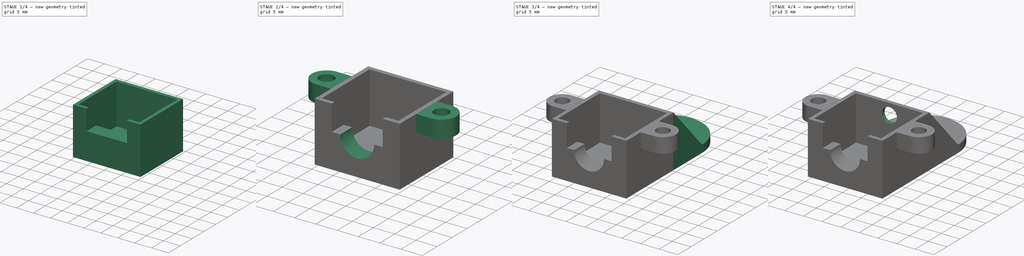
[diagram: build sequence overview — one tinted view per stage of 4, left to right]
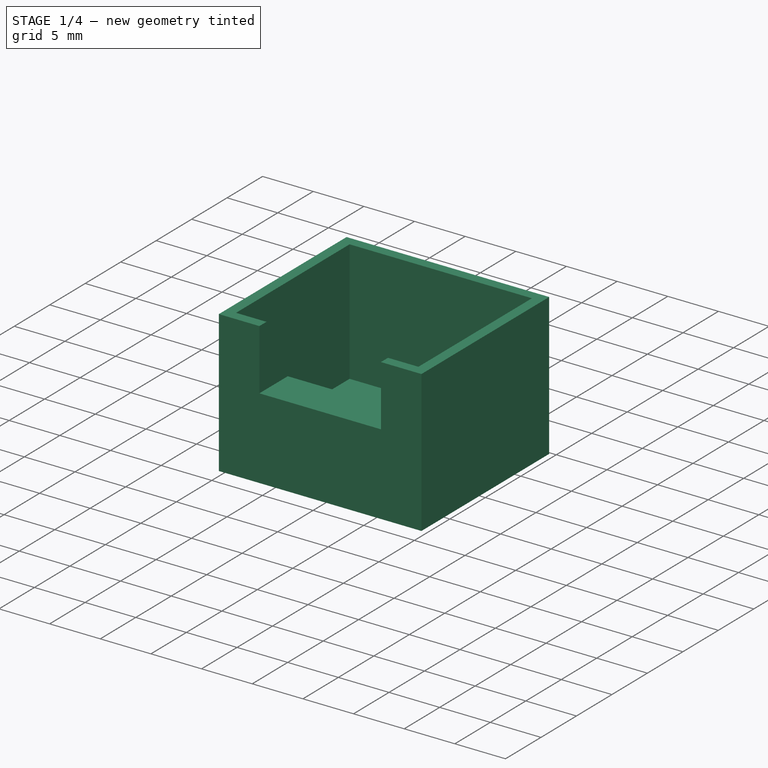
[diagram: stage 1 of 4 — iso view after this stage's code; geometry added in this stage tinted green]
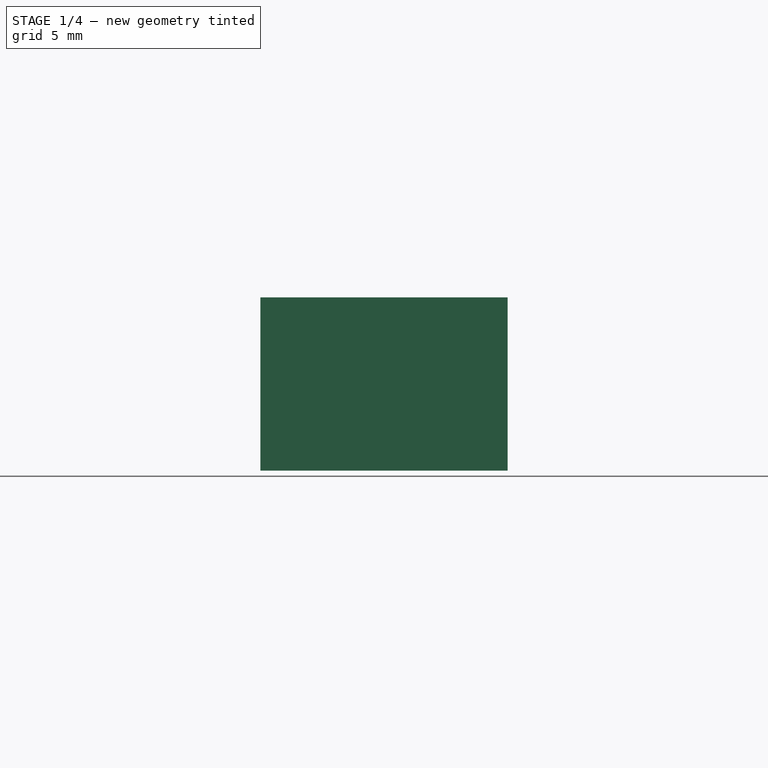
[diagram: stage 1 of 4 — front view after this stage's code; geometry added in this stage tinted green]
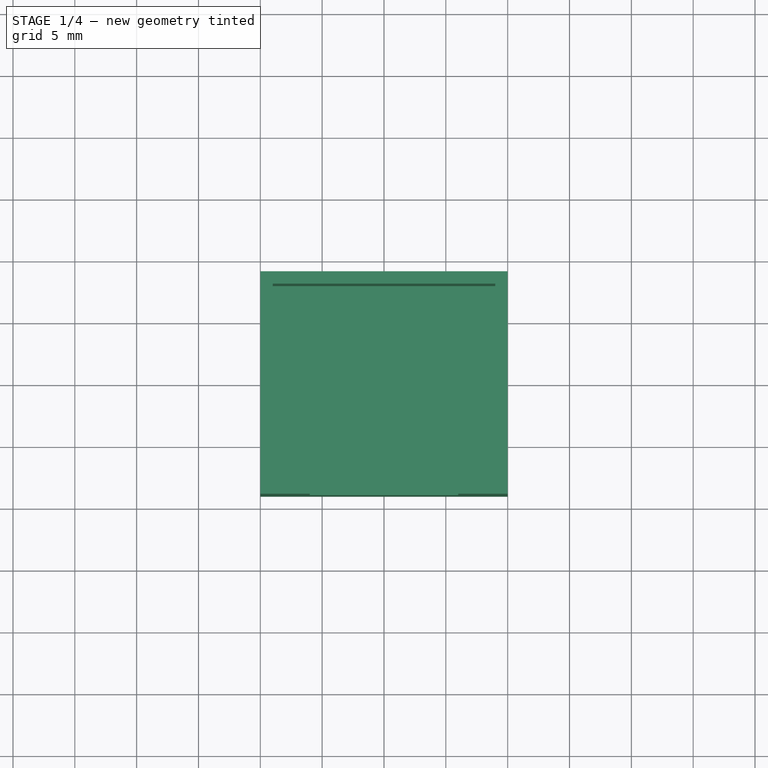
[diagram: stage 1 of 4 — top view after this stage's code; geometry added in this stage tinted green]
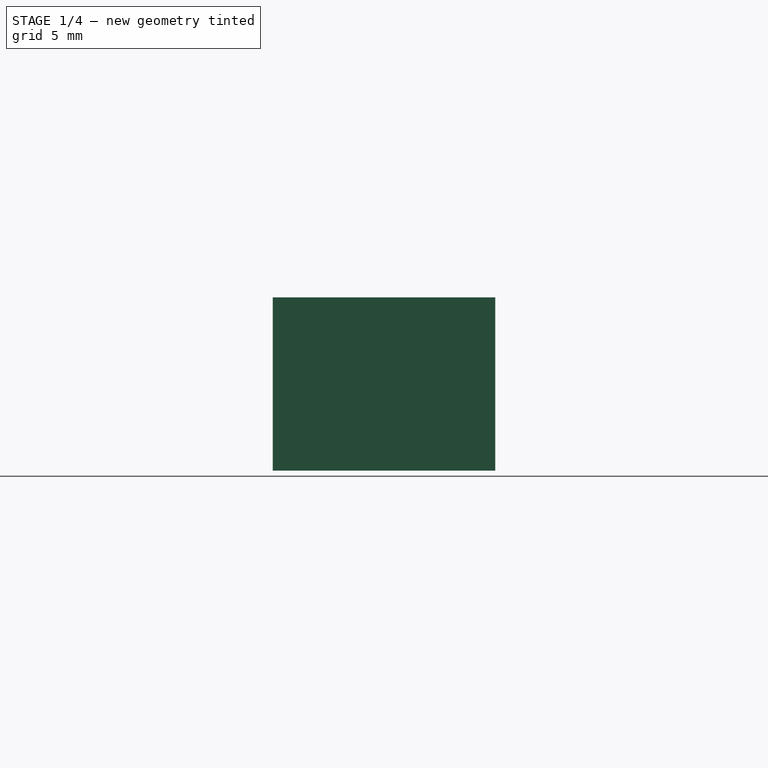
[diagram: stage 1 of 4 — right view after this stage's code; geometry added in this stage tinted green]
FCSTD DOCUMENT  (FreeCAD 1.0R38641 +678 (Git))
Label: box-part3
License: All rights reserved
LicenseURL: https://en.wikipedia.org/wiki/All_rights_reserved
objects: Sketcher::SketchObject×11, PartDesign::Pad×6, PartDesign::Pocket×4, PartDesign::Hole×1, PartDesign::Body×1
note: 56 computed .brp shape members not serialized (recipe doc carries the construction recipe); baked Part::Feature solids carry a one-line shape summary decoded from their .brp

FEATURE [Sketcher::SketchObject] Sketch302
  ArcFitTolerance = 0
  FullyConstrained = true
  MakeInternals = false
  MapMode = 5
  Placement = pos=(0,0,40) rot=(0,0,1;0rad)
  sketch-geometry (4):
    g0: LineSegment StartX=-10 StartY=9 StartZ=0 EndX=10 EndY=9 EndZ=0
    g1: LineSegment StartX=10 StartY=9 StartZ=0 EndX=10 EndY=-9 EndZ=0
    g2: LineSegment StartX=10 StartY=-9 StartZ=0 EndX=-10 EndY=-9 EndZ=0
    g3: LineSegment StartX=-10 StartY=-9 StartZ=0 EndX=-10 EndY=9 EndZ=0
  constraints (12):
    c: Coincident(g0,g1)
    c: Coincident(g1,g2)
    c: Coincident(g2,g3)
    c: Coincident(g3,g0)
    c: Horizontal(g0)
    c: Horizontal(g2)
    c: Vertical(g1)
    c: Vertical(g3)
    c: DistanceX(g2,g2) = 20
    c: DistanceY(g1,g1) = 18
    c: Distance(g-1,g3) = 10
    c: Distance(g-1,g0) = 9
FEATURE [PartDesign::Pad] Pad142
  Direction = (0,0,1)
  Length = 2
  Length2 = 10
  Placement = pos=(0,0,40) rot=(0,0,1;0rad)
  Profile = -> Sketch302
  ReferenceAxis = -> Sketch302 [N_Axis]
  Suppressed = false
  Type = 0
FEATURE [Sketcher::SketchObject] Sketch305
  ArcFitTolerance = 0
  FullyConstrained = true
  MakeInternals = false
  MapMode = 5
  Placement = pos=(0,0,42) rot=(0,0,1;0rad)
  sketch-geometry (4):
    g0: LineSegment StartX=-6 StartY=-5 StartZ=0 EndX=6 EndY=-5 EndZ=0
    g1: LineSegment StartX=6 StartY=-5 StartZ=0 EndX=6 EndY=-9 EndZ=0
    g2: LineSegment StartX=6 StartY=-9 StartZ=0 EndX=-6 EndY=-9 EndZ=0
    g3: LineSegment StartX=-6 StartY=-9 StartZ=0 EndX=-6 EndY=-5 EndZ=0
  constraints (12):
    c: Coincident(g0,g1)
    c: Coincident(g1,g2)
    c: Coincident(g2,g3)
    c: Coincident(g3,g0)
    c: Horizontal(g0)
    c: Horizontal(g2)
    c: Vertical(g1)
    c: Vertical(g3)
    c: DistanceX(g2,g2) = 12
    c: Distance(g-1,g3) = 6
    c: DistanceY(g1,g1) = 4
    c: Distance(g-1,g0) = 5
FEATURE [PartDesign::Pad] Pad143
  BaseFeature = -> Pad142
  Direction = (0,0,1)
  Length = 6
  Length2 = 10
  Placement = pos=(0,0,40) rot=(0,0,1;0rad)
  Profile = -> Sketch305
  ReferenceAxis = -> Sketch305 [N_Axis]
  Suppressed = false
  Type = 0
FEATURE [Sketcher::SketchObject] Sketch306
  ArcFitTolerance = 0
  AttachmentSupport = -> [Pad143]
  FullyConstrained = true
  MakeInternals = false
  MapMode = 5
  Placement = pos=(0,0,42) rot=(0,0,1;0rad)
  sketch-geometry (12):
    g0: LineSegment StartX=-9 StartY=-8 StartZ=0 EndX=-6 EndY=-8 EndZ=0
    g1: LineSegment StartX=-9 StartY=8 StartZ=0 EndX=-9 EndY=-8 EndZ=0
    g2: LineSegment StartX=9 StartY=-8 StartZ=0 EndX=9 EndY=8 EndZ=0
    g3: LineSegment StartX=-9 StartY=8 StartZ=0 EndX=9 EndY=8 EndZ=0
    g4: LineSegment StartX=-10 StartY=9 StartZ=0 EndX=-10 EndY=-9 EndZ=0
    g5: LineSegment StartX=-10 StartY=-9 StartZ=0 EndX=-6 EndY=-9 EndZ=0
    g6: LineSegment StartX=10 StartY=-9 StartZ=0 EndX=10 EndY=9 EndZ=0
    g7: LineSegment StartX=10 StartY=9 StartZ=0 EndX=-10 EndY=9 EndZ=0
    g8: LineSegment StartX=-6 StartY=-8 StartZ=0 EndX=-6 EndY=-9 EndZ=0
    g9: LineSegment StartX=6 StartY=-8 StartZ=0 EndX=6 EndY=-9 EndZ=0
    g10: LineSegment StartX=6 StartY=-8 StartZ=0 EndX=9 EndY=-8 EndZ=0
    g11: LineSegment StartX=6 StartY=-9 StartZ=0 EndX=10 EndY=-9 EndZ=0
  constraints (36):
    c: Horizontal(g0)
    c: Coincident(g1,g0)
    c: Vertical(g1)
    c: Coincident(g2,g10)
    c: Vertical(g2)
    c: Coincident(g3,g1)
    c: Coincident(g3,g2)
    c: Horizontal(g3)
    c: Vertical(g4)
    c: Coincident(g5,g4)
    c: Horizontal(g5)
    c: Coincident(g6,g11)
    c: Vertical(g6)
    c: Coincident(g7,g6)
    c: Coincident(g7,g4)
    c: Horizontal(g7)
    c: DistanceY(g6,g6) = 18
    c: DistanceY(g2,g2) = 16
    c: DistanceX(g5,g11) = 20
    c: DistanceX(g0,g10) = 18
    c: Distance(g-1,g0) = 8
    c: Distance(g-1,g5) = 9
    c: Distance(g-1,g1) = 9
    c: Distance(g-1,g4) = 10
    c: Vertical(g8)
    c: Vertical(g9)
    c: Coincident(g0,g8)
    c: Coincident(g10,g9)
    c: Coincident(g5,g8)
    c: Coincident(g11,g9)
    c: Horizontal(g10)
    c: Horizontal(g11)
    c: DistanceY(g9,g9) = 1
    c: Distance(g-1,g8) = 6
    c: Distance(g-1,g9) = 6
    c: Distance(g-1,g10) = 8
FEATURE [PartDesign::Pad] Pad144
  BaseFeature = -> Pad143
  Direction = (0,0,1)
  Length = 12
  Length2 = 10
  Placement = pos=(0,0,40) rot=(0,0,1;0rad)
  Profile = -> Sketch306
  ReferenceAxis = -> Sketch306 [N_Axis]
  Suppressed = false
  Type = 0
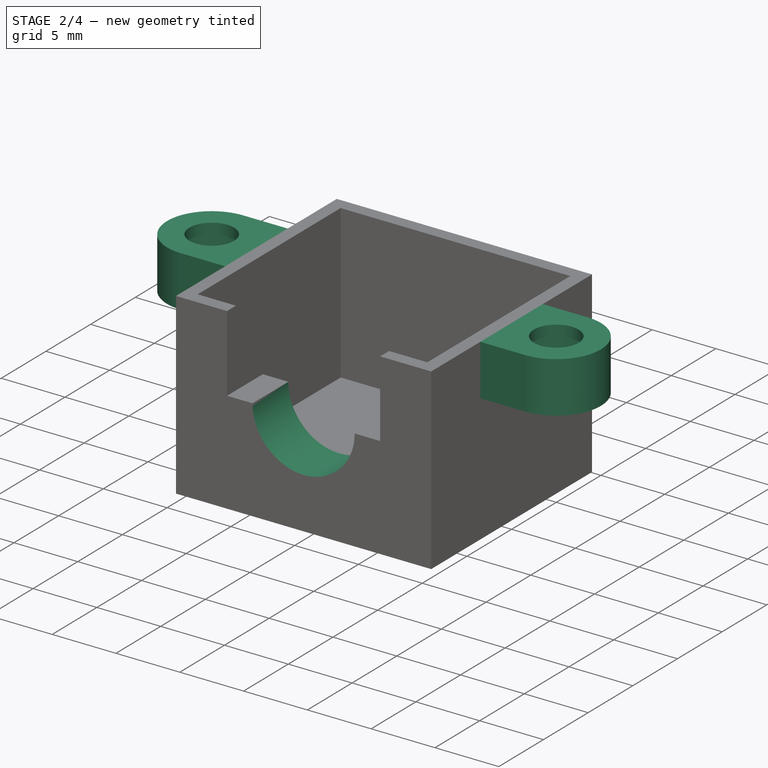
[diagram: stage 2 of 4 — iso view after this stage's code; geometry added in this stage tinted green]
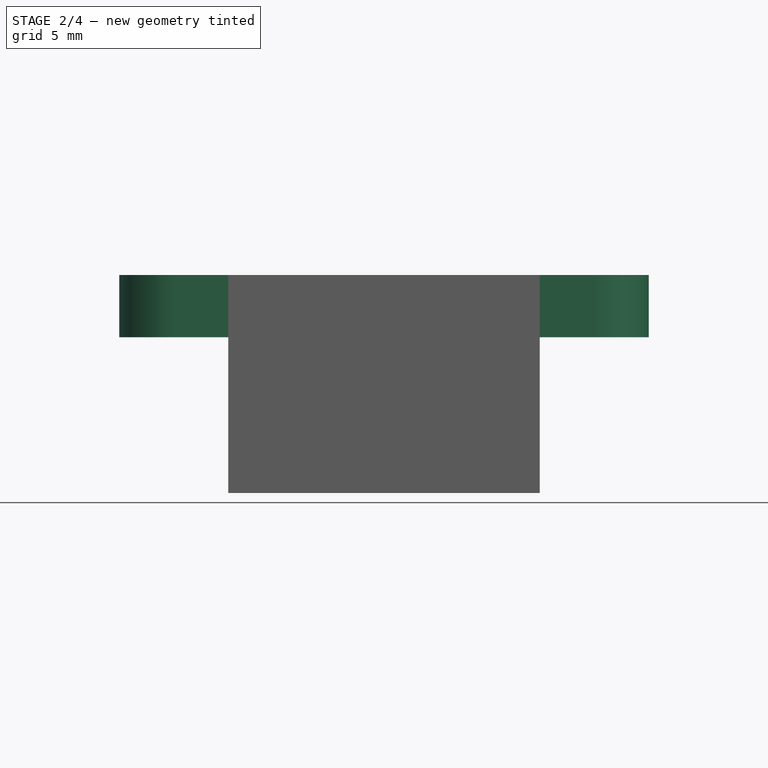
[diagram: stage 2 of 4 — front view after this stage's code; geometry added in this stage tinted green]
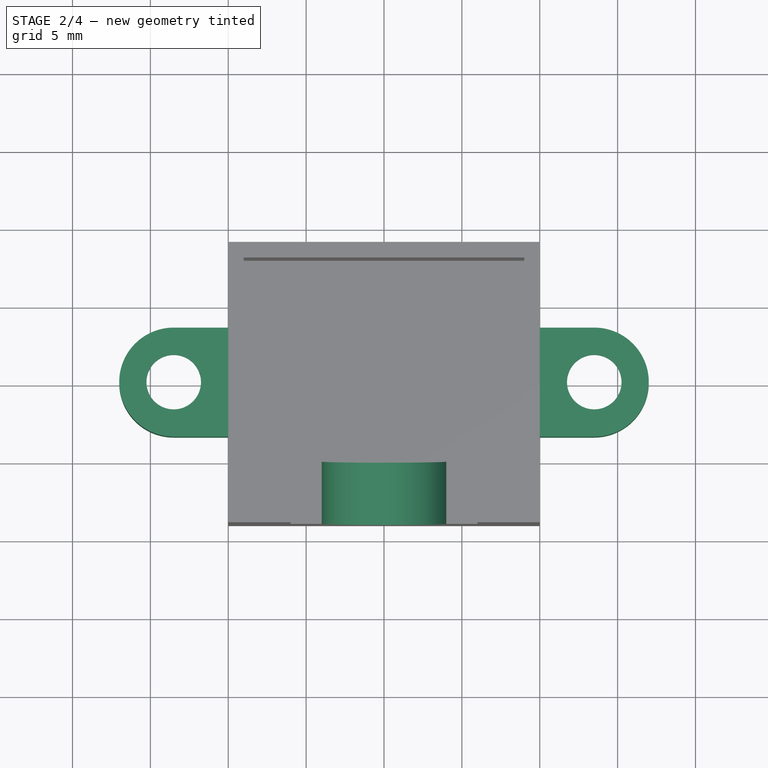
[diagram: stage 2 of 4 — top view after this stage's code; geometry added in this stage tinted green]
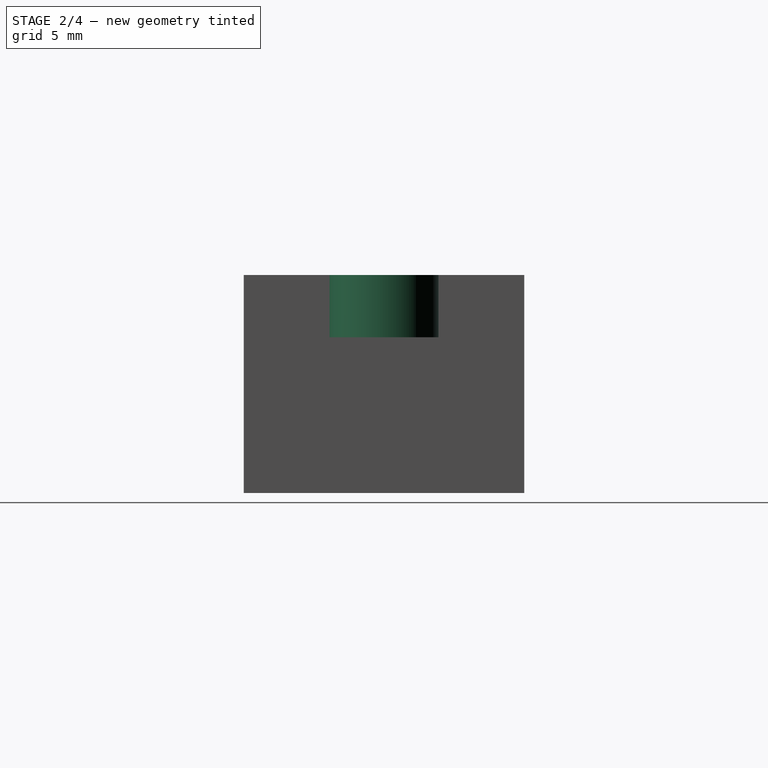
[diagram: stage 2 of 4 — right view after this stage's code; geometry added in this stage tinted green]
FEATURE [Sketcher::SketchObject] Sketch307
  ArcFitTolerance = 0
  AttachmentSupport = -> [Pad144]
  FullyConstrained = true
  MakeInternals = false
  MapMode = 5
  Placement = pos=(0,0,54) rot=(0,0,1;0rad)
  sketch-geometry (8):
    g0: ArcOfCircle CenterX=13.5 CenterY=0 CenterZ=0 NormalX=0 NormalY=0 NormalZ=1 AngleXU=0 Radius=3.5 StartAngle=4.71239 EndAngle=7.85398
    g1: ArcOfCircle CenterX=-13.5 CenterY=0 CenterZ=0 NormalX=0 NormalY=0 NormalZ=1 AngleXU=0 Radius=3.5 StartAngle=1.5708 EndAngle=4.71239
    g2: LineSegment StartX=10 StartY=-3.5 StartZ=0 EndX=10 EndY=3.5 EndZ=0
    g3: LineSegment StartX=10 StartY=-3.5 StartZ=0 EndX=13.5 EndY=-3.5 EndZ=0
    g4: LineSegment StartX=10 StartY=3.5 StartZ=0 EndX=13.5 EndY=3.5 EndZ=0
    g5: LineSegment StartX=-10 StartY=-3.5 StartZ=0 EndX=-10 EndY=3.5 EndZ=0
    g6: LineSegment StartX=-10 StartY=-3.5 StartZ=0 EndX=-13.5 EndY=-3.5 EndZ=0
    g7: LineSegment StartX=-10 StartY=3.5 StartZ=0 EndX=-13.5 EndY=3.5 EndZ=0
  constraints (22):
    c: PointOnObject(g0,g-1)
    c: PointOnObject(g1,g-1)
    c: Diameter(g1) = 7
    c: Equal(g1,g0)
    c: DistanceX(g-2,g0) = 13.5
    c: DistanceX(g-2,g1) = -13.5
    c: Vertical(g2)
    c: Coincident(g3,g2)
    c: Horizontal(g3)
    c: Coincident(g4,g2)
    c: Horizontal(g4)
    c: Vertical(g5)
    c: Coincident(g6,g5)
    c: Horizontal(g6)
    c: Coincident(g7,g5)
    c: Horizontal(g7)
    c: Tangent(g0,g4) = 1.5708
    c: Tangent(g0,g3) = -1.5708
    c: Tangent(g1,g7) = -1.5708
    c: Tangent(g1,g6) = 1.5708
    c: Distance(g-1,g2) = 10
    c: Distance(g-1,g5) = 10
FEATURE [PartDesign::Pad] Pad145
  BaseFeature = -> Pad144
  Direction = (0,0,1)
  Length = 4
  Length2 = 10
  Placement = pos=(0,0,40) rot=(0,0,1;0rad)
  Profile = -> Sketch307
  ReferenceAxis = -> Sketch307 [N_Axis]
  Reversed = true
  Suppressed = false
  Type = 0
FEATURE [Sketcher::SketchObject] Sketch308
  ArcFitTolerance = 0
  AttachmentSupport = -> [Pad145]
  FullyConstrained = true
  MakeInternals = false
  MapMode = 5
  Placement = pos=(0,-9,40) rot=(1,0,0;1.5708rad)
  sketch-geometry (1):
    g0: Circle CenterX=0 CenterY=8 CenterZ=0 NormalX=0 NormalY=0 NormalZ=1 AngleXU=0 Radius=4
  constraints (3):
    c: PointOnObject(g0,g-2)
    c: DistanceY(g-1,g0) = 8
    c: Diameter(g0) = 8
FEATURE [PartDesign::Pocket] Pocket126
  BaseFeature = -> Pad145
  Direction = (0,1,-2e-16)
  Length = 5
  Length2 = 5
  Placement = pos=(0,0,40) rot=(0,0,1;0rad)
  Profile = -> Sketch308
  ReferenceAxis = -> Sketch308 [N_Axis]
  Suppressed = false
  Type = 0
FEATURE [Sketcher::SketchObject] Sketch309
  ArcFitTolerance = 0
  AttachmentSupport = -> [Pocket126]
  FullyConstrained = true
  MakeInternals = false
  MapMode = 5
  Placement = pos=(0,0,50) rot=(1,0,0;3.14159rad)
  sketch-geometry (2):
    g0: Circle CenterX=-13.5 CenterY=0 CenterZ=0 NormalX=0 NormalY=0 NormalZ=1 AngleXU=0 Radius=1.75
    g1: Circle CenterX=13.5 CenterY=0 CenterZ=0 NormalX=0 NormalY=0 NormalZ=1 AngleXU=0 Radius=1.75
  constraints (6):
    c: PointOnObject(g1,g-1)
    c: Diameter(g0) = 3.5
    c: PointOnObject(g0,g-1)
    c: Equal(g0,g1)
    c: DistanceX(g-2,g0) = -13.5
    c: DistanceX(g-2,g1) = 13.5
FEATURE [PartDesign::Hole] Hole013
  BaseFeature = -> Pocket126
  CustomThreadClearance = 0
  Depth = 25
  DepthType = 0
  Diameter = 3.5
  DrillForDepth = false
  DrillPoint = 1
  DrillPointAngle = 118
  HoleCutCountersinkAngle = 90
  HoleCutCustomValues = false
  HoleCutDepth = 3.15
  HoleCutDiameter = 6
  HoleCutType = 1
  ModelThread = false
  Placement = pos=(0,0,40) rot=(0,0,1;0rad)
  Profile = -> Sketch309
  Suppressed = false
  Tapered = false
  TaperedAngle = 90
  ThreadClass = 0
  ThreadDepth = 25
  ThreadDepthType = 0
  ThreadDirection = 0
  ThreadFit = 0
  ThreadSize = 0
  ThreadType = 0
  Threaded = false
  UseCustomThreadClearance = false
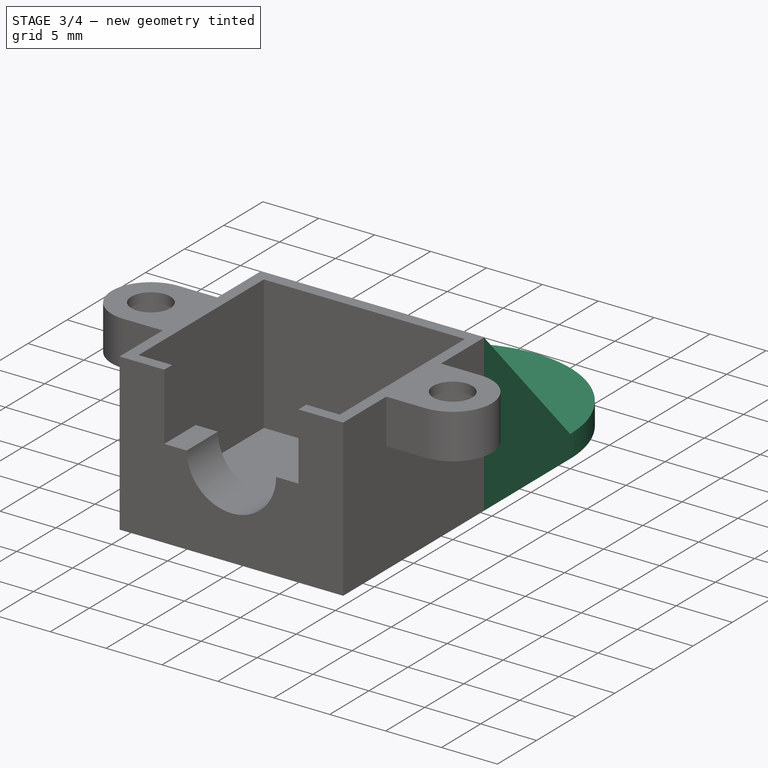
[diagram: stage 3 of 4 — iso view after this stage's code; geometry added in this stage tinted green]
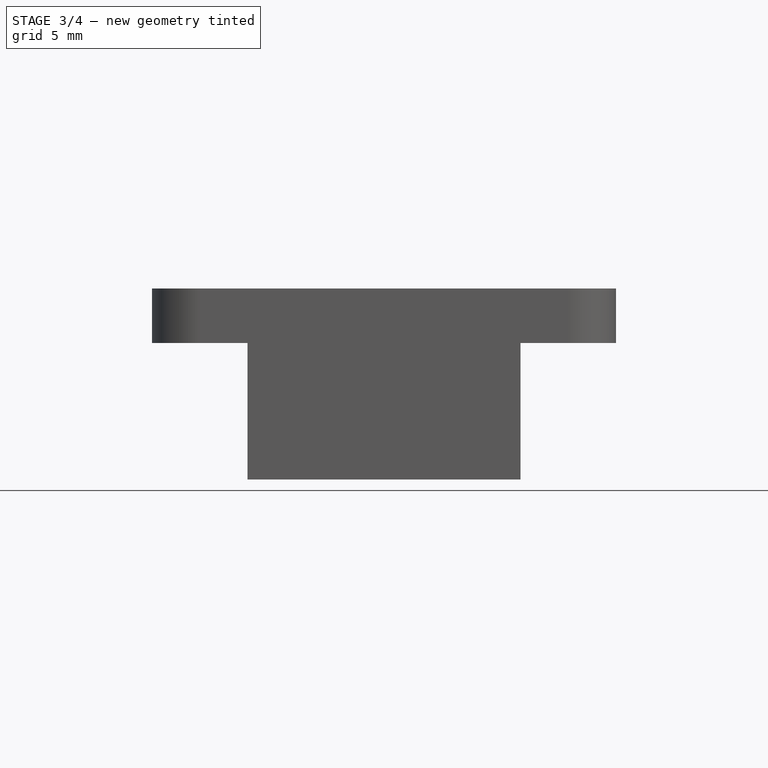
[diagram: stage 3 of 4 — front view after this stage's code; geometry added in this stage tinted green]
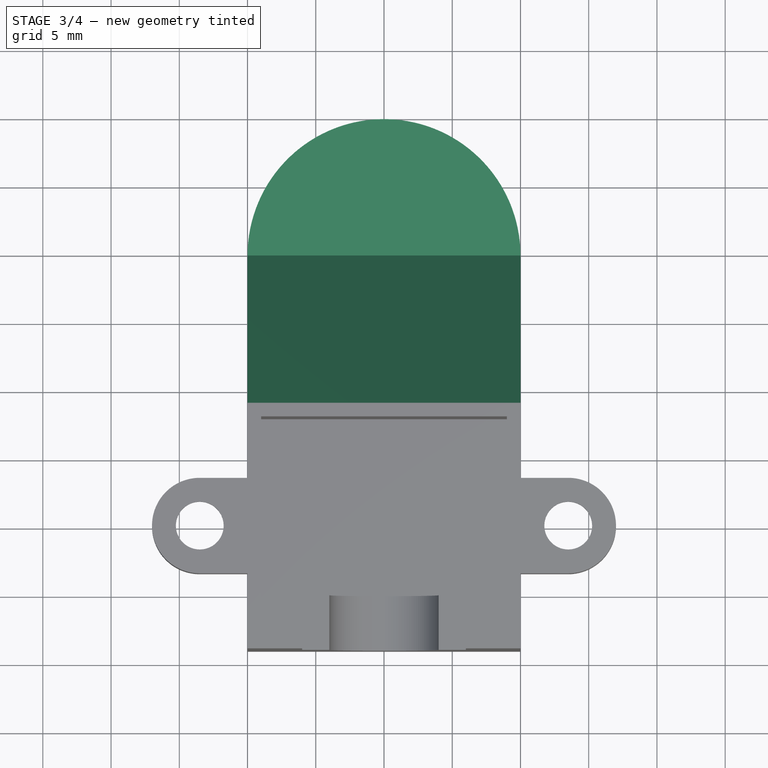
[diagram: stage 3 of 4 — top view after this stage's code; geometry added in this stage tinted green]
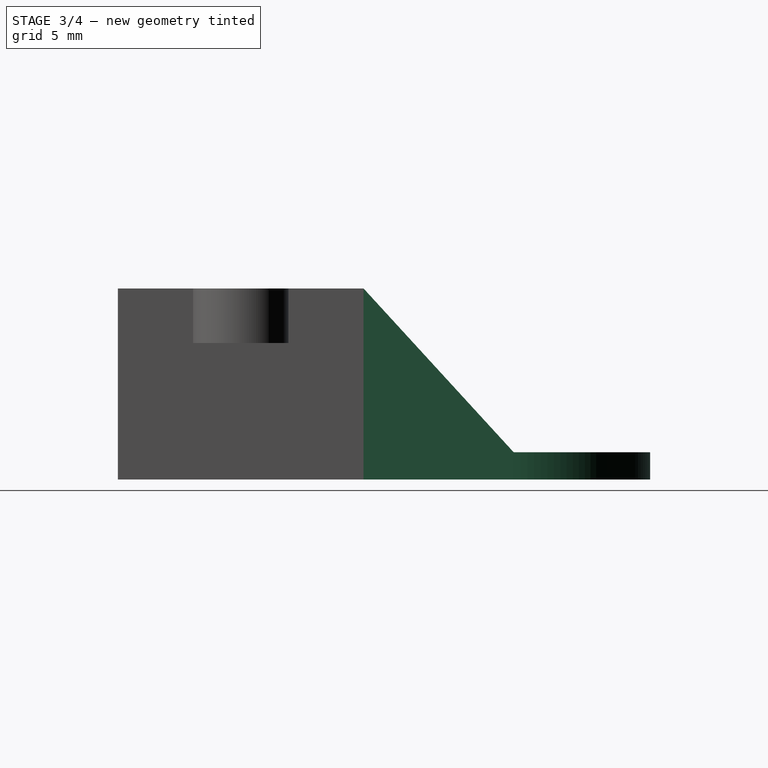
[diagram: stage 3 of 4 — right view after this stage's code; geometry added in this stage tinted green]
FEATURE [Sketcher::SketchObject] Sketch310
  ArcFitTolerance = 0
  AttachmentSupport = -> [Hole013]
  FullyConstrained = true
  MakeInternals = false
  MapMode = 5
  Placement = pos=(0,0,40) rot=(1,0,0;3.14159rad)
  sketch-geometry (4):
    g0: ArcOfCircle CenterX=0 CenterY=-20 CenterZ=0 NormalX=0 NormalY=0 NormalZ=1 AngleXU=0 Radius=10 StartAngle=3.14159 EndAngle=6.28319
    g1: LineSegment StartX=-10 StartY=-8 StartZ=0 EndX=10 EndY=-8 EndZ=0
    g2: LineSegment StartX=-10 StartY=-8 StartZ=0 EndX=-10 EndY=-20 EndZ=0
    g3: LineSegment StartX=10 StartY=-8 StartZ=0 EndX=10 EndY=-20 EndZ=0
  constraints (11):
    c: PointOnObject(g0,g-2)
    c: Horizontal(g1)
    c: Diameter(g0) = 20
    c: DistanceY(g-1,g0) = -20
    c: Coincident(g2,g1)
    c: Vertical(g2)
    c: Coincident(g3,g1)
    c: Vertical(g3)
    c: Distance(g-1,g1) = 8
    c: Tangent(g0,g3) = 1.5708
    c: Tangent(g0,g2) = -1.5708
FEATURE [PartDesign::Pad] Pad146
  BaseFeature = -> Hole013
  Direction = (0,0,-1)
  Length = 2
  Length2 = 10
  Placement = pos=(0,0,40) rot=(0,0,1;0rad)
  Profile = -> Sketch310
  ReferenceAxis = -> Sketch310 [N_Axis]
  Reversed = true
  Suppressed = false
  Type = 0
FEATURE [Sketcher::SketchObject] Sketch311
  ArcFitTolerance = 0
  AttachmentSupport = -> [Pad146]
  FullyConstrained = true
  MakeInternals = false
  MapMode = 5
  Placement = pos=(-10,0,40) rot=(0.57735,-0.57735,-0.57735;2.0944rad)
  sketch-geometry (5):
    g0: LineSegment StartX=-8 StartY=14 StartZ=0 EndX=-9 EndY=14 EndZ=0
    g1: LineSegment StartX=-8 StartY=14 StartZ=0 EndX=-8 EndY=0 EndZ=0
    g2: LineSegment StartX=-20 StartY=2 StartZ=0 EndX=-20 EndY=0 EndZ=0
    g3: LineSegment StartX=-20 StartY=0 StartZ=0 EndX=-8 EndY=0 EndZ=0
    g4: LineSegment StartX=-20 StartY=2 StartZ=0 EndX=-9 EndY=14 EndZ=0
  constraints (15):
    c: Horizontal(g0)
    c: Coincident(g1,g0)
    c: PointOnObject(g1,g-1)
    c: Vertical(g1)
    c: PointOnObject(g2,g-1)
    c: Vertical(g2)
    c: Coincident(g3,g2)
    c: Coincident(g3,g1)
    c: Coincident(g4,g2)
    c: Coincident(g4,g0)
    c: DistanceY(g1,g1) = 14
    c: DistanceX(g-2,g1) = -8
    c: DistanceX(g3,g3) = 12
    c: DistanceX(g0,g0) = 1
    c: DistanceY(g2,g2) = 2
FEATURE [PartDesign::Pad] Pad147
  BaseFeature = -> Pad146
  Direction = (-1,0,0)
  Length = 20
  Length2 = 10
  Placement = pos=(0,0,40) rot=(0,0,1;0rad)
  Profile = -> Sketch311
  ReferenceAxis = -> Sketch311 [N_Axis]
  Reversed = true
  Suppressed = false
  Type = 0
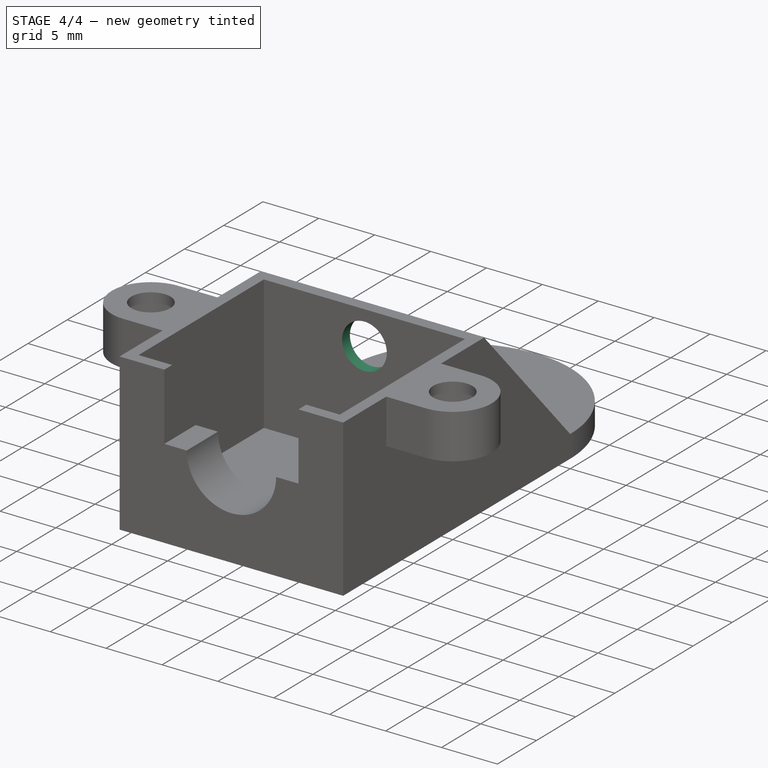
[diagram: stage 4 of 4 — iso view after this stage's code; geometry added in this stage tinted green]
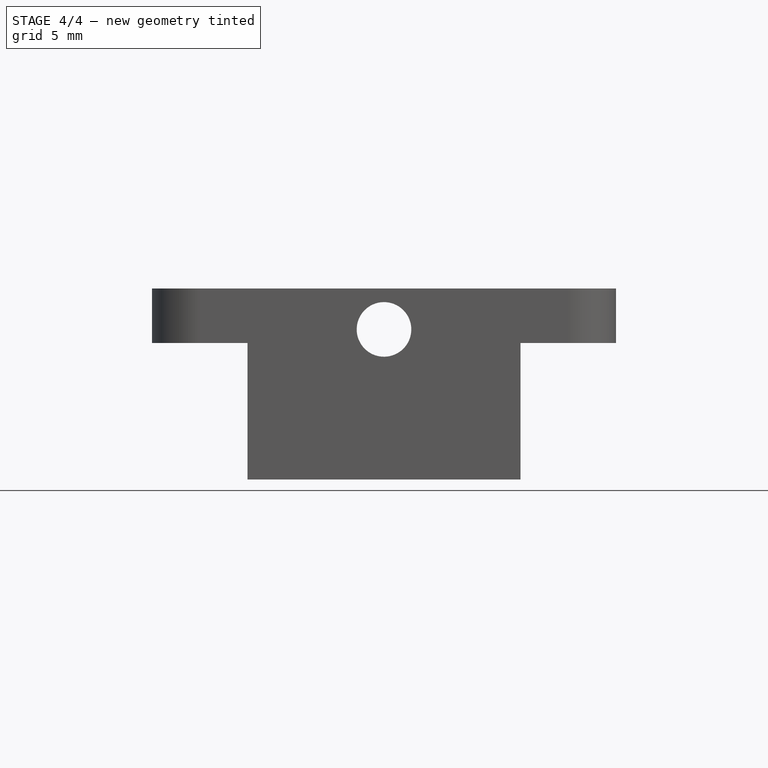
[diagram: stage 4 of 4 — front view after this stage's code; geometry added in this stage tinted green]
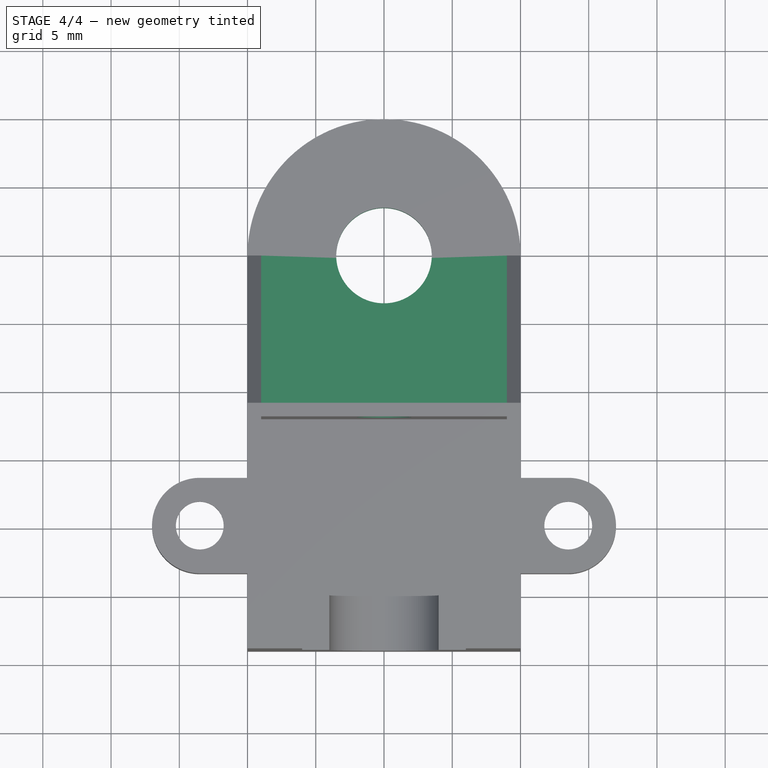
[diagram: stage 4 of 4 — top view after this stage's code; geometry added in this stage tinted green]
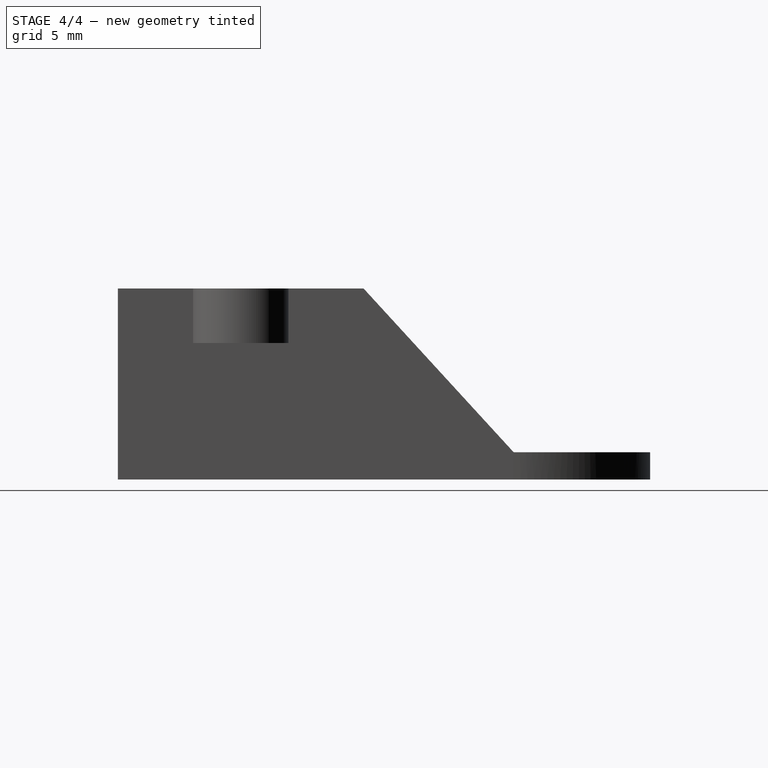
[diagram: stage 4 of 4 — right view after this stage's code; geometry added in this stage tinted green]
FEATURE [Sketcher::SketchObject] Sketch312
  ArcFitTolerance = 0
  AttachmentSupport = -> [Pad146]
  FullyConstrained = true
  MakeInternals = false
  MapMode = 5
  Placement = pos=(0,9,40) rot=(0,0.707107,0.707107;3.14159rad)
  sketch-geometry (4):
    g0: LineSegment StartX=-9 StartY=14 StartZ=0 EndX=9 EndY=14 EndZ=0
    g1: LineSegment StartX=9 StartY=14 StartZ=0 EndX=9 EndY=2 EndZ=0
    g2: LineSegment StartX=9 StartY=2 StartZ=0 EndX=-9 EndY=2 EndZ=0
    g3: LineSegment StartX=-9 StartY=2 StartZ=0 EndX=-9 EndY=14 EndZ=0
  constraints (12):
    c: Coincident(g0,g1)
    c: Coincident(g1,g2)
    c: Coincident(g2,g3)
    c: Coincident(g3,g0)
    c: Horizontal(g0)
    c: Horizontal(g2)
    c: Vertical(g1)
    c: Vertical(g3)
    c: Distance(g-1,g0) = 14
    c: Distance(g-1,g3) = 9
    c: DistanceX(g0,g0) = 18
    c: DistanceY(g3,g3) = 12
FEATURE [PartDesign::Pocket] Pocket127
  BaseFeature = -> Pad147
  Direction = (0,-1,0)
  Length = 20
  Length2 = 5
  Placement = pos=(0,0,40) rot=(0,0,1;0rad)
  Profile = -> Sketch312
  ReferenceAxis = -> Sketch312 [N_Axis]
  Reversed = true
  Suppressed = false
  Type = 0
  UseCustomVector = true
FEATURE [Sketcher::SketchObject] Sketch313
  ArcFitTolerance = 0
  AttachmentSupport = -> [Pocket127]
  FullyConstrained = true
  MakeInternals = false
  MapMode = 5
  Placement = pos=(0,0,40) rot=(1,0,0;3.14159rad)
  sketch-geometry (1):
    g0: Circle CenterX=0 CenterY=-20 CenterZ=0 NormalX=0 NormalY=0 NormalZ=1 AngleXU=0 Radius=3.5
  constraints (3):
    c: PointOnObject(g0,g-2)
    c: Diameter(g0) = 7
    c: DistanceY(g-1,g0) = -20
FEATURE [PartDesign::Pocket] Pocket128
  BaseFeature = -> Pocket127
  Direction = (0,0,1)
  Length = 5
  Length2 = 5
  Placement = pos=(0,0,40) rot=(0,0,1;0rad)
  Profile = -> Sketch313
  ReferenceAxis = -> Sketch313 [N_Axis]
  Suppressed = false
  Type = 0
FEATURE [Sketcher::SketchObject] Sketch314
  ArcFitTolerance = 0
  AttachmentSupport = -> [Pocket128]
  FullyConstrained = true
  MakeInternals = false
  MapMode = 5
  Placement = pos=(0,9,40) rot=(0,0.707107,0.707107;3.14159rad)
  sketch-geometry (1):
    g0: Circle CenterX=0 CenterY=11 CenterZ=0 NormalX=0 NormalY=0 NormalZ=1 AngleXU=0 Radius=2
  constraints (3):
    c: PointOnObject(g0,g-2)
    c: Diameter(g0) = 4
    c: DistanceY(g-1,g0) = 11
FEATURE [PartDesign::Pocket] Pocket129
  BaseFeature = -> Pocket128
  Direction = (0,-1,2e-16)
  Length = 5
  Length2 = 5
  Placement = pos=(0,0,40) rot=(0,0,1;0rad)
  Profile = -> Sketch314
  ReferenceAxis = -> Sketch314 [N_Axis]
  Suppressed = false
  Type = 0
FEATURE [PartDesign::Body] Body032  label="box-part3"
  AllowCompound = false
  Group = -> [Sketch302,Pad142,Sketch305,Pad143,Sketch306,Pad144,Sketch307,Pad145,Sketch308,Pocket126,Sketch309,Hole013,Sketch310,Pad146,Sketch311,Pad147,Sketch312,Pocket127,Sketch313,Pocket128,Sketch314,Pocket129]
  Origin = -> Origin032
  Placement = pos=(4e-15,0,106) rot=(0,1,0;3.14159rad)
  Tip = -> Pocket129
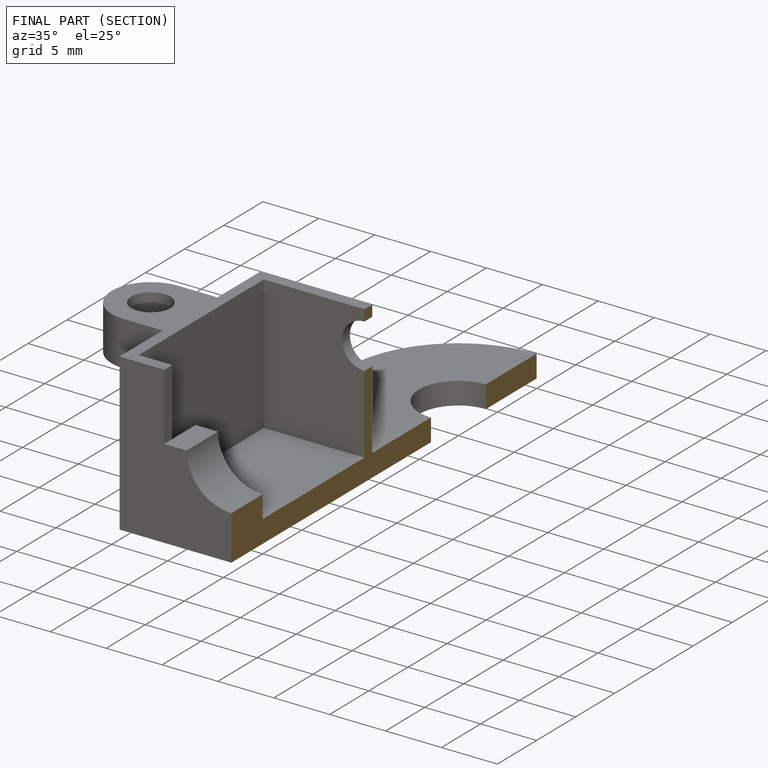
[diagram: finished part — half-section view (interior)]
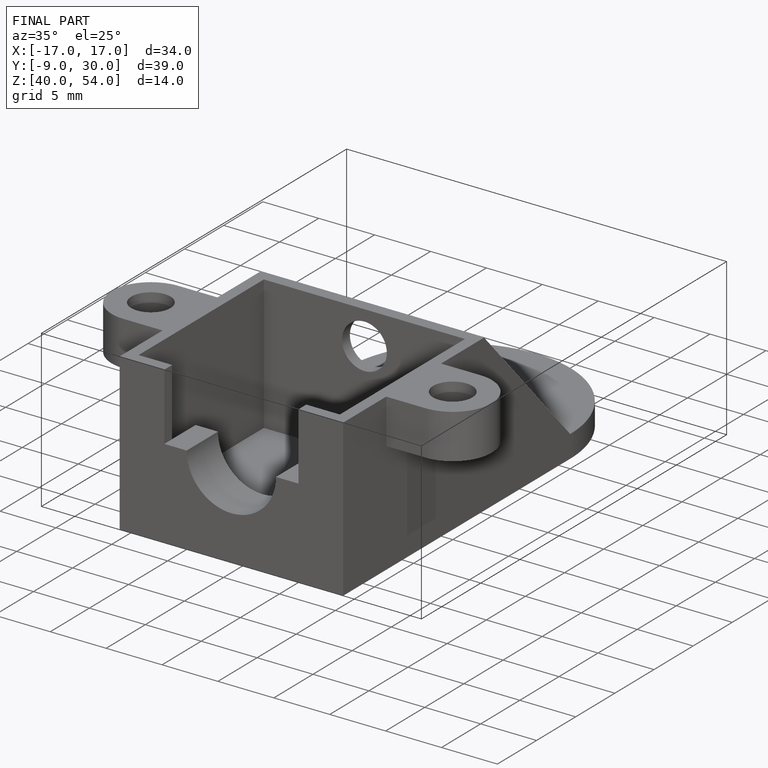
[diagram: finished part — iso view with bounding-box wireframe]
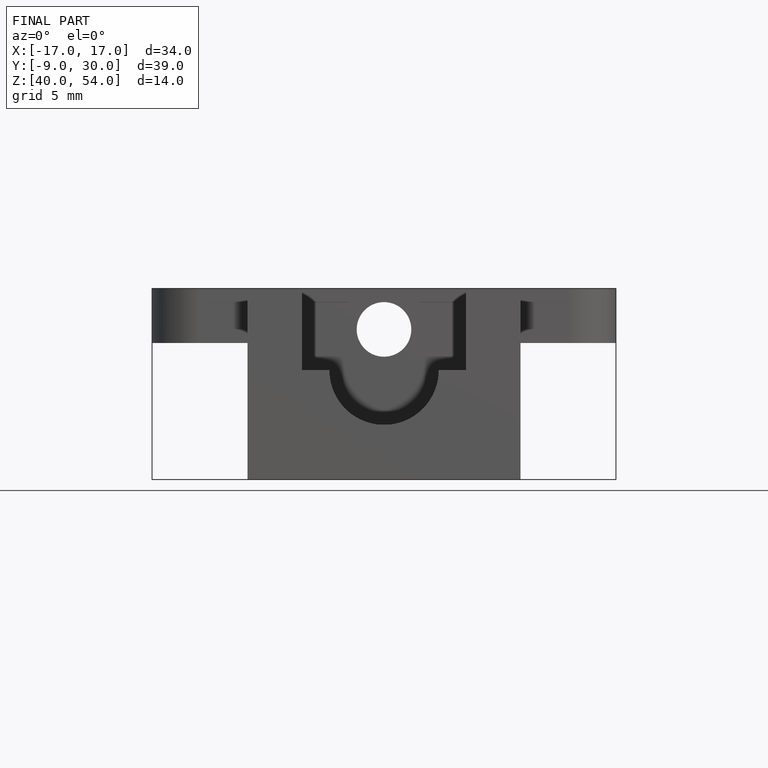
[diagram: finished part — front view with bounding-box wireframe]
